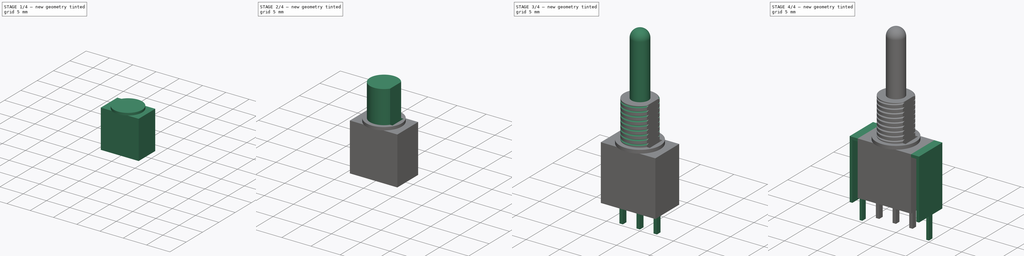
[diagram: build sequence overview — one tinted view per stage of 4, left to right]
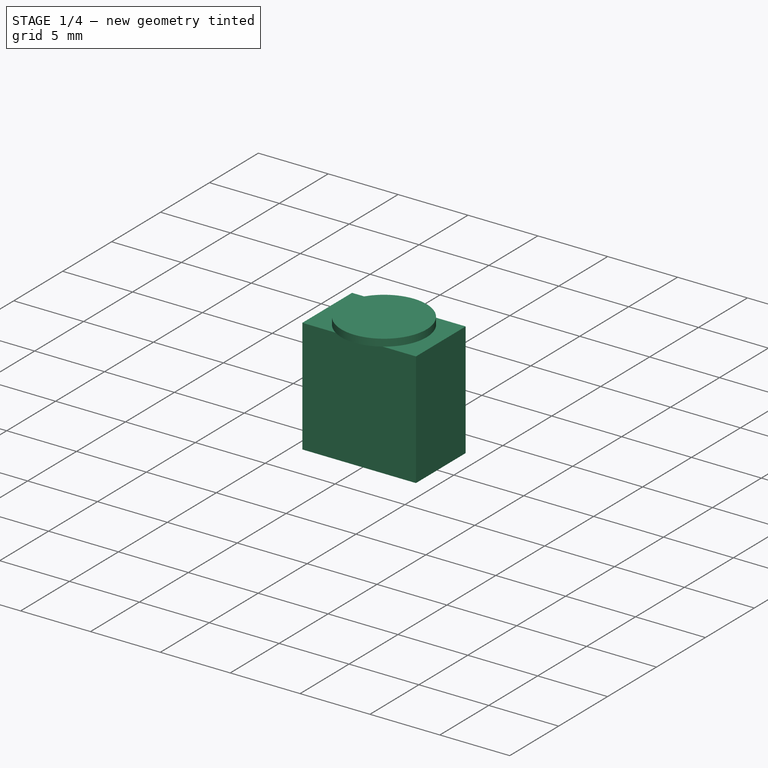
[diagram: stage 1 of 4 — iso view after this stage's code; geometry added in this stage tinted green]
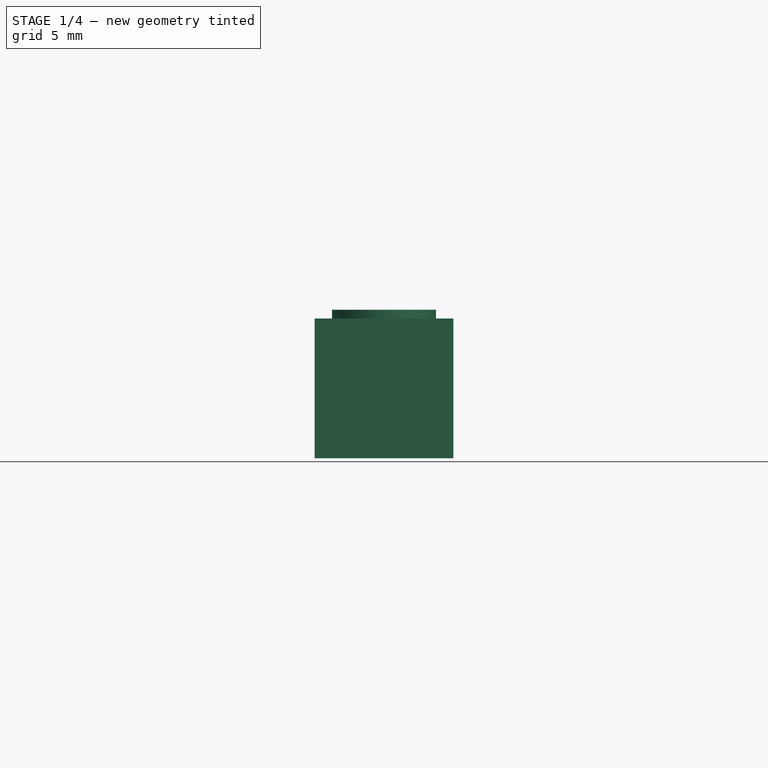
[diagram: stage 1 of 4 — front view after this stage's code; geometry added in this stage tinted green]
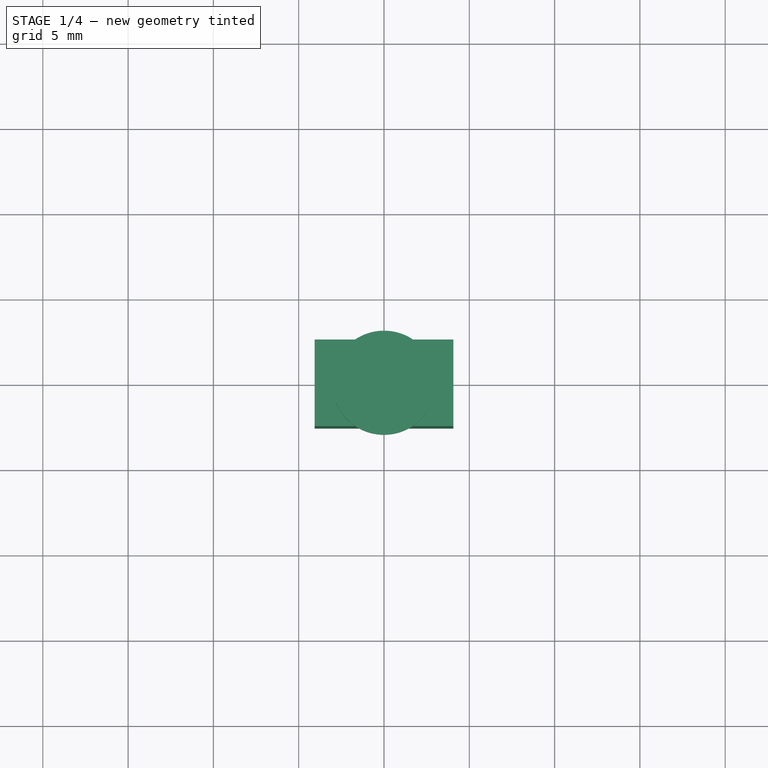
[diagram: stage 1 of 4 — top view after this stage's code; geometry added in this stage tinted green]
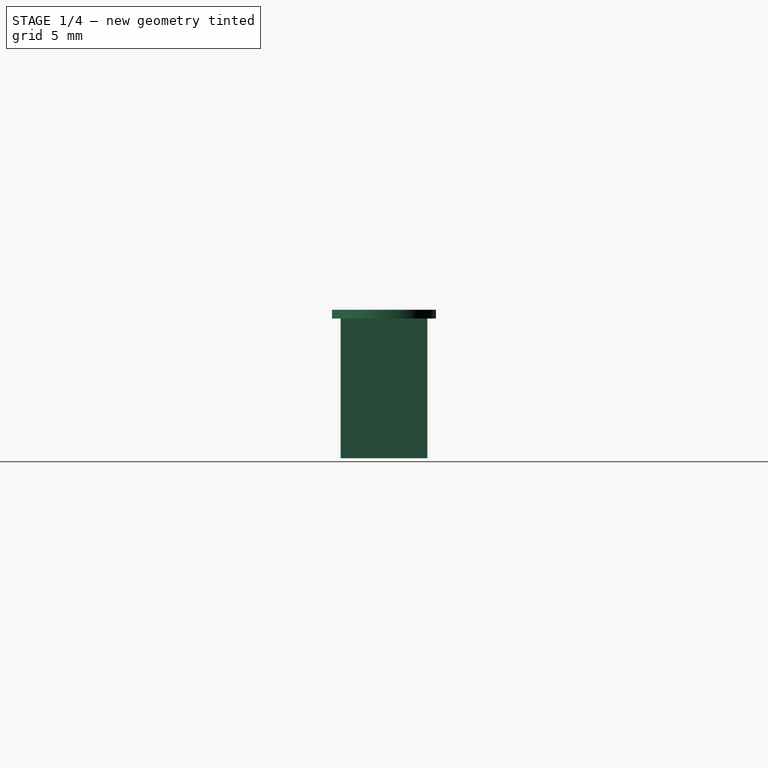
[diagram: stage 1 of 4 — right view after this stage's code; geometry added in this stage tinted green]
FCSTD DOCUMENT  (FreeCAD 0.19R24276 (Git))
Label: BNT11SEA5QE
License: All rights reserved
LicenseURL: http://en.wikipedia.org/wiki/All_rights_reserved
objects: Sketcher::SketchObject×6, PartDesign::Pad×3, PartDesign::AdditiveCylinder×2, PartDesign::AdditiveBox×1, PartDesign::Point×1, PartDesign::Pocket×1, PartDesign::Plane×1, PartDesign::SubtractiveHelix×1, PartDesign::Revolution×1, PartDesign::Body×1
note: 27 computed .brp shape members not serialized (recipe doc carries the construction recipe); baked Part::Feature solids carry a one-line shape summary decoded from their .brp

FEATURE [PartDesign::AdditiveBox] Box  label="Lower body"
  AttacherType = Attacher::AttachEngine3D
  AttachmentOffset = pos=(-4.065,-2.54,0) rot=(0,0,1;0rad)
  Height = 8.19
  Length = 8.13
  MapMode = 5
  Placement = pos=(-4.065,-2.54,0) rot=(0,0,1;0rad)
  Support = -> [XY_Plane]
  Width = 5.08
FEATURE [PartDesign::Point] DatumPoint  label="Lower body center"
  AttacherType = Attacher::AttachEnginePoint
  MapMode = 37
  Placement = pos=(0,0,8.19) rot=(0,0,1;0rad)
  Support = -> [Box]
FEATURE [PartDesign::AdditiveCylinder] Cylinder
  Angle = 360
  AttacherType = Attacher::AttachEngine3D
  BaseFeature = -> Box
  Height = 0.51
  MapMode = 1
  Placement = pos=(0,0,8.19) rot=(0,0,1;0rad)
  Radius = 3.05
  Support = -> [DatumPoint]
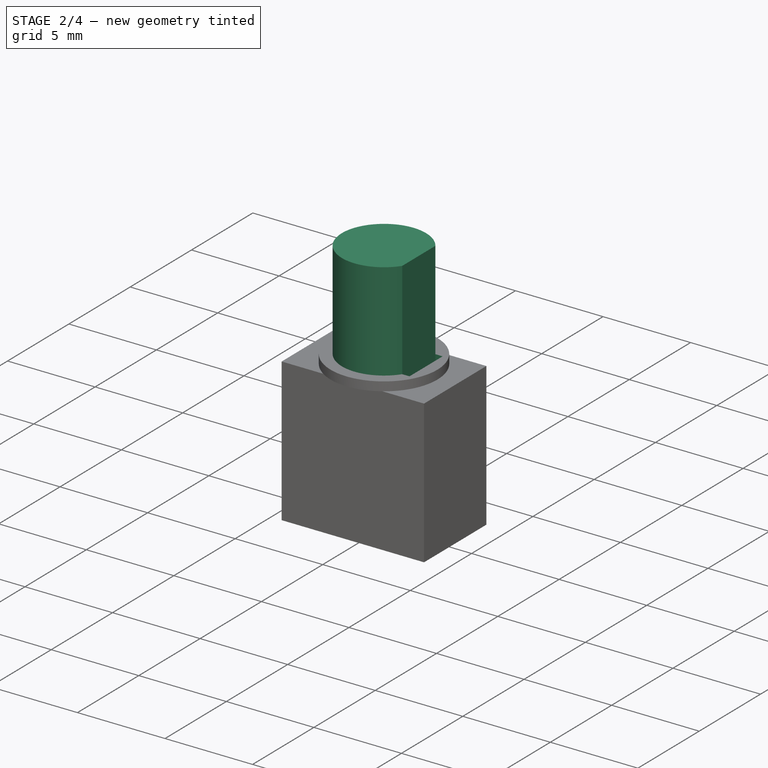
[diagram: stage 2 of 4 — iso view after this stage's code; geometry added in this stage tinted green]
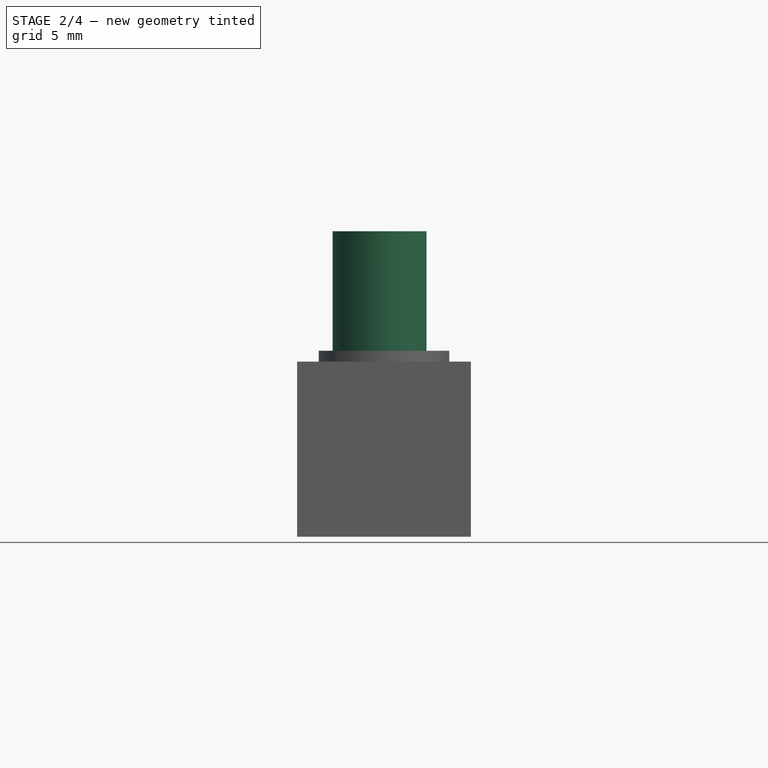
[diagram: stage 2 of 4 — front view after this stage's code; geometry added in this stage tinted green]
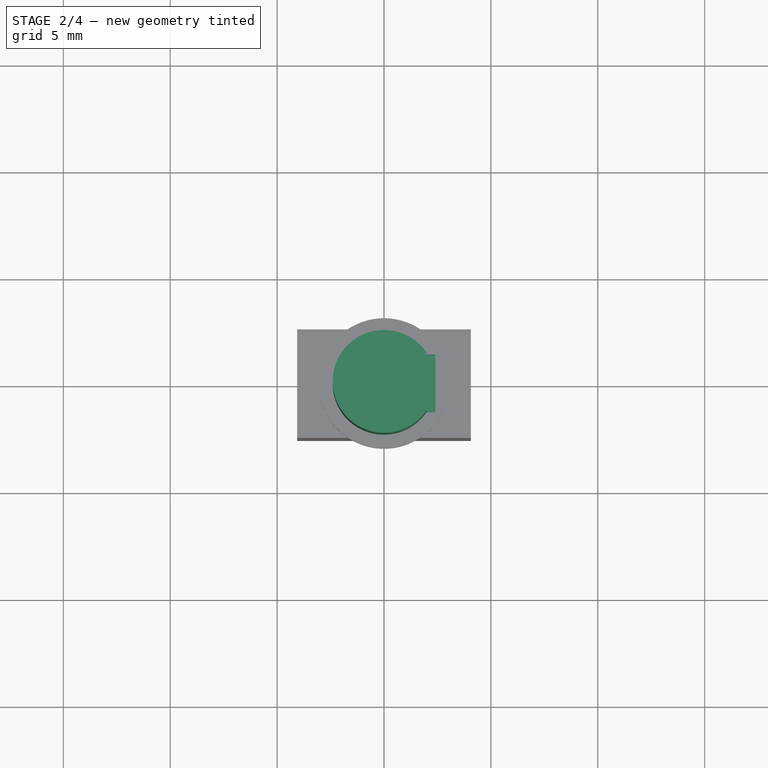
[diagram: stage 2 of 4 — top view after this stage's code; geometry added in this stage tinted green]
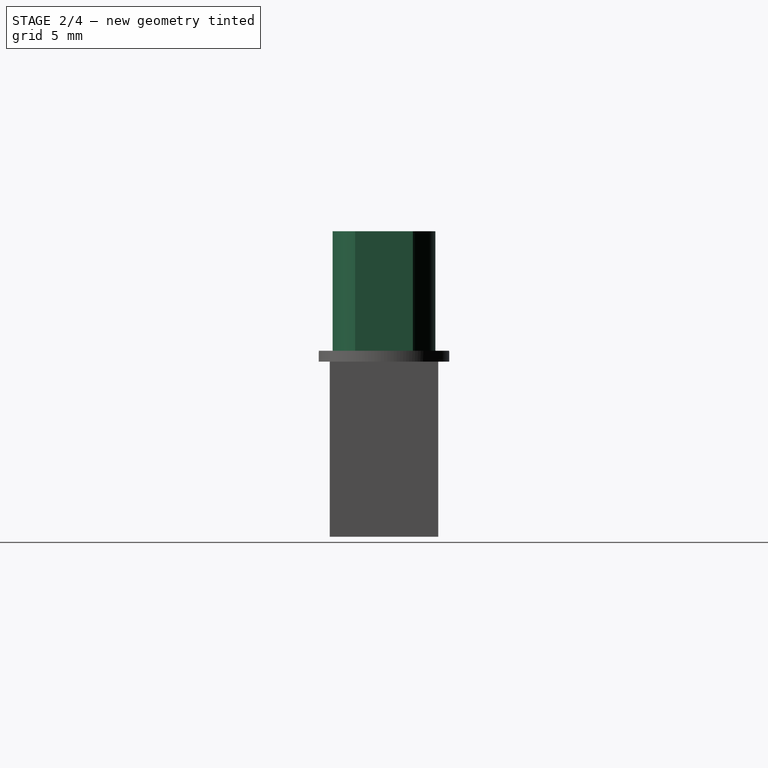
[diagram: stage 2 of 4 — right view after this stage's code; geometry added in this stage tinted green]
FEATURE [PartDesign::AdditiveCylinder] Cylinder001
  Angle = 360
  AttacherType = Attacher::AttachEngine3D
  BaseFeature = -> Cylinder
  Height = 5.59
  MapMode = 5
  Placement = pos=(0,0,8.7) rot=(0,0,1;0rad)
  Radius = 2.40284
  Support = -> [Cylinder]
  expr: Radius = 0.1892in / 2
FEATURE [Sketcher::SketchObject] Sketch
  ExternalGeometry = -> [Cylinder001]
  FullyConstrained = true
  MapMode = 5
  Placement = pos=(0,0,14.29) rot=(0,0,1;0rad)
  Support = -> [Cylinder001]
  sketch-geometry (5):
    g0: LineSegment StartX=1.98716 StartY=1.35086 StartZ=0 EndX=1.98716 EndY=-1.35086 EndZ=0
    g1: GeomPoint X=-2.40284 Y=0 Z=0
    g2: LineSegment StartX=1.98716 StartY=1.35086 StartZ=0 EndX=2.40284 EndY=1.35086 EndZ=0
    g3: LineSegment StartX=2.40284 StartY=1.35086 StartZ=0 EndX=2.40284 EndY=-1.35086 EndZ=0
    g4: LineSegment StartX=1.98716 StartY=-1.35086 StartZ=0 EndX=2.40284 EndY=-1.35086 EndZ=0
  constraints (14):
    c: PointOnObject(g0,g-3)
    c: PointOnObject(g0,g-3)
    c: Vertical(g0)
    c: PointOnObject(g1,g-3)
    c: PointOnObject(g1,g-1)
    c: DistanceX(g1,g0) = 4.39
    c: Coincident(g2,g0)
    c: Horizontal(g2)
    c: Coincident(g3,g2)
    c: Coincident(g4,g0)
    c: Coincident(g4,g3)
    c: Horizontal(g4)
    c: Tangent(g3,g-3)
    c: Equal(g2,g4)
FEATURE [PartDesign::Pocket] Pocket
  BaseFeature = -> Cylinder001
  Length = 0
  Length2 = 100
  Placement = pos=(0,0,8.7) rot=(0,0,1;0rad)
  Profile = -> Sketch
  Type = 3
  UpToFace = -> Cylinder001 [Face8]
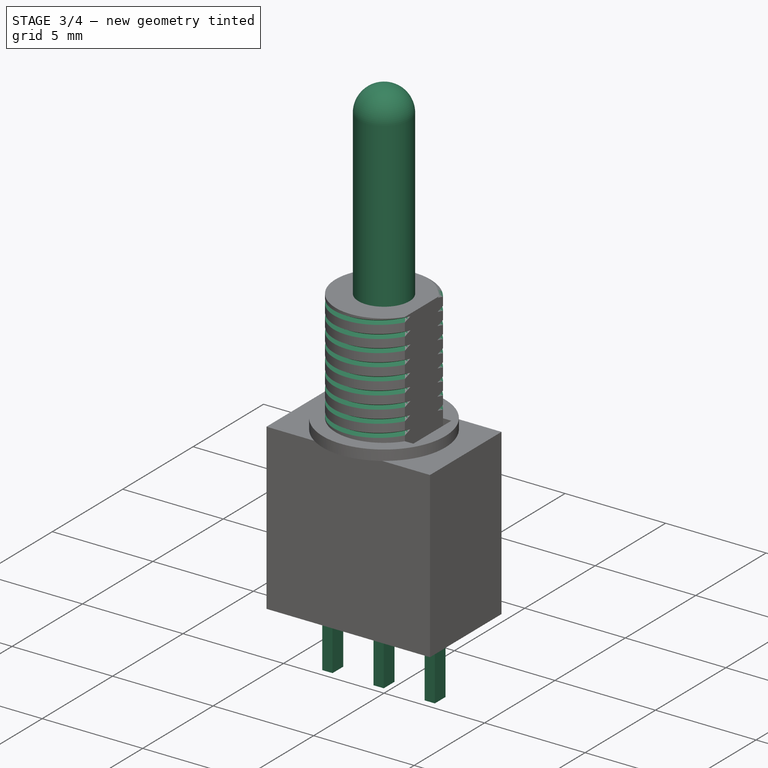
[diagram: stage 3 of 4 — iso view after this stage's code; geometry added in this stage tinted green]
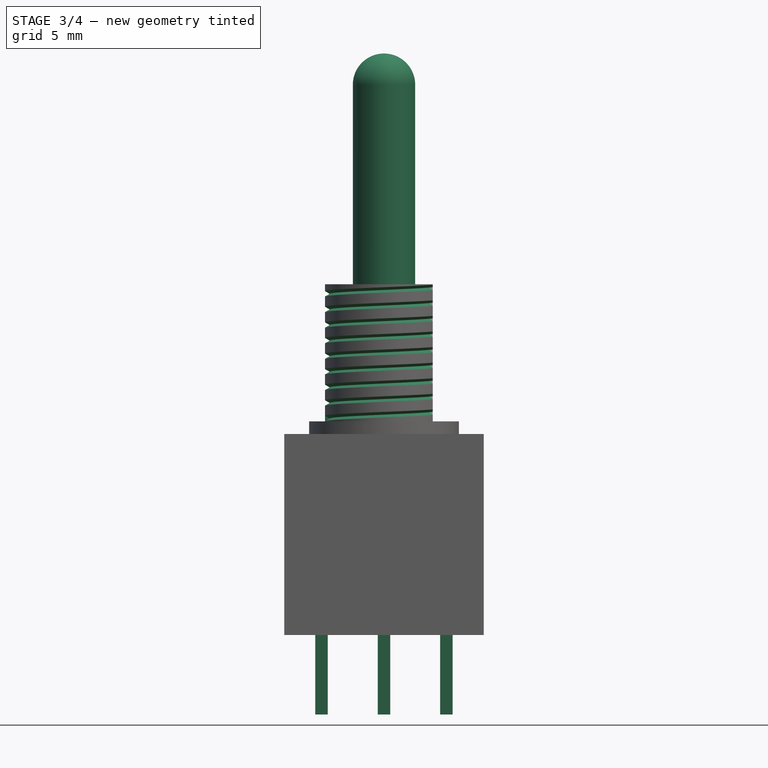
[diagram: stage 3 of 4 — front view after this stage's code; geometry added in this stage tinted green]
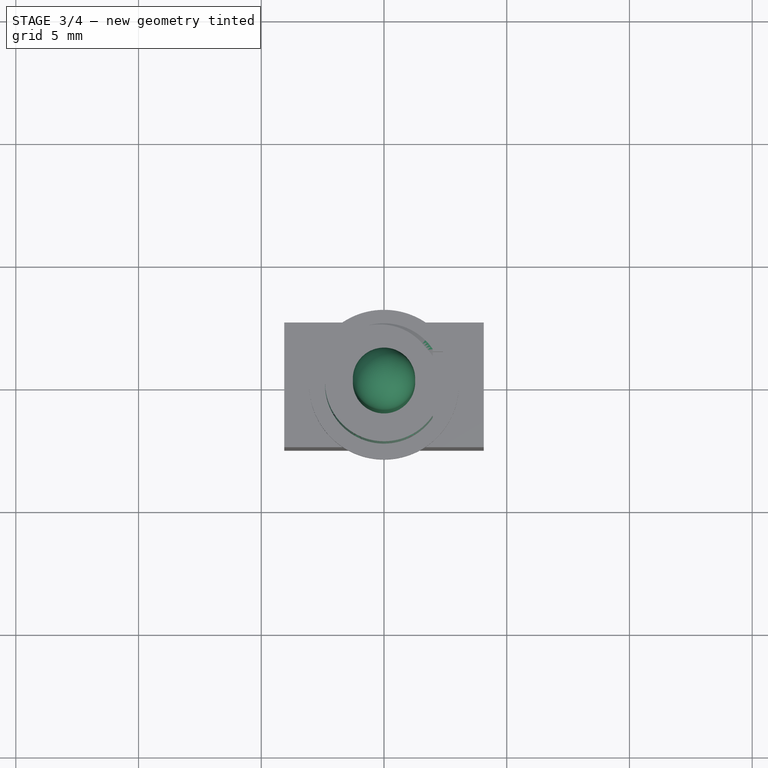
[diagram: stage 3 of 4 — top view after this stage's code; geometry added in this stage tinted green]
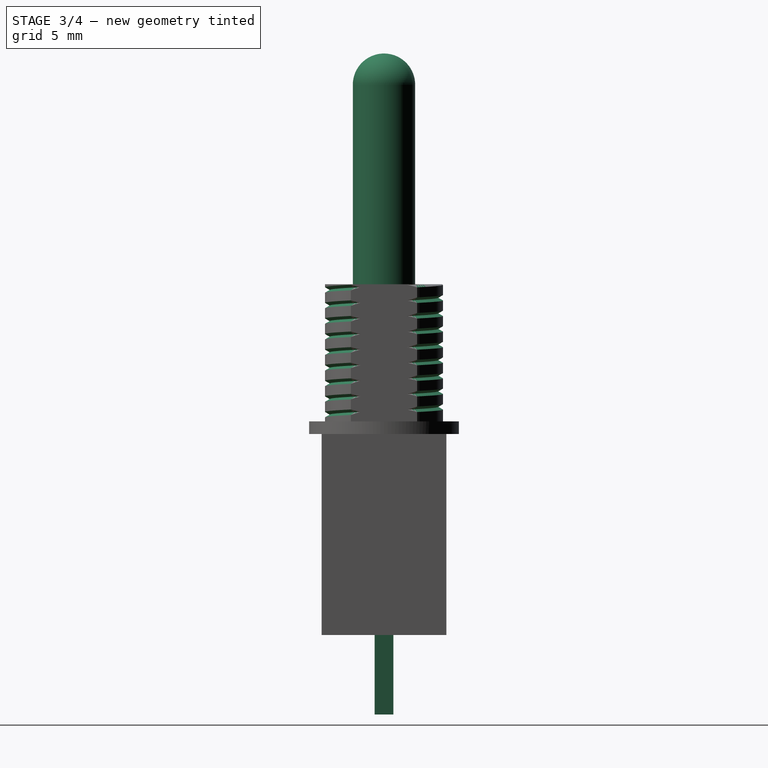
[diagram: stage 3 of 4 — right view after this stage's code; geometry added in this stage tinted green]
FEATURE [PartDesign::Plane] DatumPlane
  Length = 60
  MapMode = 45
  Placement = pos=(0,0,4.095) rot=(0.57735,0.57735,0.57735;4.18879rad)
  ResizeMode = 0
  Support = -> [Pocket]
  Width = 60
FEATURE [Sketcher::SketchObject] Sketch001
  ExternalGeometry = -> [Pocket]
  FullyConstrained = true
  MapMode = 5
  Placement = pos=(0,0,4.095) rot=(0.57735,0.57735,0.57735;4.18879rad)
  Support = -> [DatumPlane]
  expr: Constraints[8] = 0.1892in / 2mm + 0.01
  expr: Constraints[0] = (0.1892in - 0.1731in) / 2
  sketch-geometry (4):
    g0: LineSegment StartX=4.72305 StartY=-2.20837 StartZ=0 EndX=4.8411 EndY=-2.41284 EndZ=0
    g1: LineSegment StartX=4.72305 StartY=-2.20837 StartZ=0 EndX=4.605 EndY=-2.41284 EndZ=0
    g2: LineSegment StartX=4.8411 StartY=-2.41284 StartZ=0 EndX=4.605 EndY=-2.41284 EndZ=0
    g3: GeomPoint X=4.605 Y=0 Z=0
  constraints (11):
    c: DistanceY(g0,g0) = 0.20447
    c: Coincident(g1,g0)
    c: Horizontal(g2)
    c: Coincident(g2,g0)
    c: PointOnObject(g3,g-3)
    c: PointOnObject(g3,g-1)
    c: Coincident(g2,g1)
    c: Angle(g1,g0) = 1.0472
    c: DistanceY(g1,g3) = 2.41284
    c: PointOnObject(g1,g-3)
    c: Equal(g1,g0)
FEATURE [PartDesign::SubtractiveHelix] SubtractiveHelix
  Angle = 0
  Axis = (-3e-16,3e-16,1)
  Base = (0,0,0)
  BaseFeature = -> Pocket
  HasBeenEdited = true
  Height = 5.59
  LeftHanded = false
  Mode = 0
  Outside = false
  Pitch = 0.635
  Placement = pos=(0,0,8.7) rot=(0,0,1;0rad)
  Profile = -> Sketch001
  ReferenceAxis = -> Z_Axis
  Turns = 8.33
  expr: Pitch = 1in / 40
FEATURE [Sketcher::SketchObject] Sketch002
  ExternalGeometry = -> [SubtractiveHelix]
  FullyConstrained = true
  MapMode = 5
  Placement = pos=(0,0,4.095) rot=(0.57735,0.57735,0.57735;4.18879rad)
  Support = -> [DatumPlane]
  sketch-geometry (6):
    g0: LineSegment StartX=10.195 StartY=-1.27 StartZ=0 EndX=18.325 EndY=-1.27 EndZ=0
    g1: LineSegment StartX=18.325 StartY=-1.27 StartZ=0 EndX=18.325 EndY=0 EndZ=0
    g2: LineSegment StartX=18.325 StartY=0 StartZ=0 EndX=10.195 EndY=0 EndZ=0
    g3: LineSegment StartX=10.195 StartY=0 StartZ=0 EndX=10.195 EndY=-1.27 EndZ=0
    g4: ArcOfCircle CenterX=18.325 CenterY=0 CenterZ=0 NormalX=0 NormalY=0 NormalZ=1 AngleXU=0 Radius=1.27 StartAngle=4.71239 EndAngle=6.28319
    g5: LineSegment StartX=18.325 StartY=0 StartZ=0 EndX=19.595 EndY=-3e-16 EndZ=0
  constraints (17):
    c: Coincident(g0,g1)
    c: Coincident(g1,g2)
    c: Coincident(g2,g3)
    c: Coincident(g3,g0)
    c: Horizontal(g0)
    c: Horizontal(g2)
    c: Vertical(g1)
    c: Vertical(g3)
    c: PointOnObject(g0,g-3)
    c: PointOnObject(g1,g-1)
    c: DistanceY(g0,g1) = 1.27
    c: Coincident(g4,g2)
    c: Coincident(g4,g0)
    c: PointOnObject(g4,g-1)
    c: Coincident(g5,g2)
    c: Coincident(g5,g4)
    c: DistanceX(g2,g4) = 9.4
FEATURE [PartDesign::Revolution] Revolution
  Angle = 360
  Axis = (-3e-16,3e-16,1)
  Base = (0,0,0)
  BaseFeature = -> SubtractiveHelix
  Placement = pos=(0,0,8.7) rot=(0,0,1;0rad)
  Profile = -> Sketch002
  ReferenceAxis = -> Z_Axis
FEATURE [Sketcher::SketchObject] Sketch003
  FullyConstrained = false
  MapMode = 5
  Placement = pos=(0,0,0) rot=(1,0,0;3.14159rad)
  Support = -> [Revolution]
  sketch-geometry (23):
    g0: LineSegment StartX=-0.255 StartY=0.38 StartZ=0 EndX=0.255 EndY=0.38 EndZ=0
    g1: LineSegment StartX=0.255 StartY=0.38 StartZ=0 EndX=0.255 EndY=-0.38 EndZ=0
    g2: LineSegment StartX=0.255 StartY=-0.38 StartZ=0 EndX=-0.255 EndY=-0.38 EndZ=0
    g3: LineSegment StartX=-0.255 StartY=-0.38 StartZ=0 EndX=-0.255 EndY=0.38 EndZ=0
    g4: LineSegment StartX=-0.255 StartY=0.38 StartZ=0 EndX=0.255 EndY=-0.38 EndZ=0
    g5: LineSegment StartX=0.255 StartY=0.38 StartZ=0 EndX=-0.255 EndY=-0.38 EndZ=0
    g6: LineSegment StartX=2.285 StartY=0.38 StartZ=0 EndX=2.795 EndY=0.38 EndZ=0
    g7: LineSegment StartX=2.795 StartY=0.38 StartZ=0 EndX=2.795 EndY=-0.38 EndZ=0
    g8: LineSegment StartX=2.795 StartY=-0.38 StartZ=0 EndX=2.285 EndY=-0.38 EndZ=0
    g9: LineSegment StartX=2.285 StartY=-0.38 StartZ=0 EndX=2.285 EndY=0.38 EndZ=0
    g10: LineSegment StartX=2.285 StartY=0.38 StartZ=0 EndX=2.795 EndY=-0.38 EndZ=0
    g11: LineSegment StartX=2.795 StartY=0.38 StartZ=0 EndX=2.285 EndY=-0.38 EndZ=0
    g12: LineSegment StartX=-2.80285 StartY=0.38 StartZ=0 EndX=-2.29285 EndY=0.38 EndZ=0
    g13: LineSegment StartX=-2.29285 StartY=0.38 StartZ=0 EndX=-2.29285 EndY=-0.38 EndZ=0
    g14: LineSegment StartX=-2.29285 StartY=-0.38 StartZ=0 EndX=-2.80285 EndY=-0.38 EndZ=0
    g15: LineSegment StartX=-2.80285 StartY=-0.38 StartZ=0 EndX=-2.80285 EndY=0.38 EndZ=0
    g16: LineSegment StartX=-2.80285 StartY=0.38 StartZ=0 EndX=-2.29285 EndY=-0.38 EndZ=0
    g17: LineSegment StartX=-2.29285 StartY=0.38 StartZ=0 EndX=-2.80285 EndY=-0.38 EndZ=0
    g18: GeomPoint X=-2.54785 Y=0 Z=0
    g19: GeomPoint X=2.54 Y=0 Z=0
    g20: LineSegment StartX=-2.54785 StartY=0 StartZ=0 EndX=-0.00784984 EndY=-3.684e-13 EndZ=0
    g21: LineSegment StartX=-2.54785 StartY=0 StartZ=0 EndX=0 EndY=0 EndZ=0
    g22: LineSegment StartX=0 StartY=0 StartZ=0 EndX=2.54 EndY=0 EndZ=0
  constraints (57):
    c: Coincident(g0,g1)
    c: Coincident(g1,g2)
    c: Coincident(g2,g3)
    c: Coincident(g3,g0)
    c: Horizontal(g0)
    c: Horizontal(g2)
    c: Vertical(g1)
    c: Vertical(g3)
    c: Coincident(g4,g0)
    c: Coincident(g4,g1)
    c: Coincident(g5,g0)
    c: Coincident(g5,g2)
    c: PointOnObject(g-1,g4)
    c: PointOnObject(g-1,g5)
    c: DistanceX(g0,g0) = 0.51
    c: DistanceY(g1,g0) = 0.76
    c: Coincident(g6,g7)
    c: Coincident(g7,g8)
    c: Coincident(g8,g9)
    c: Coincident(g9,g6)
    c: Horizontal(g6)
    c: Horizontal(g8)
    c: Vertical(g7)
    c: Vertical(g9)
    c: Coincident(g10,g6)
    c: Coincident(g10,g7)
    c: Coincident(g11,g6)
    c: Coincident(g11,g8)
    c: DistanceX(g6,g6) = 0.51
    c: DistanceY(g7,g6) = 0.76
    c: Coincident(g12,g13)
    c: Coincident(g13,g14)
    c: Coincident(g14,g15)
    c: Coincident(g15,g12)
    c: Horizontal(g12)
    c: Horizontal(g14)
    c: Vertical(g13)
    c: Vertical(g15)
    c: Coincident(g16,g12)
    c: Coincident(g16,g13)
    c: Coincident(g17,g12)
    c: Coincident(g17,g14)
    c: DistanceX(g12,g12) = 0.51
    c: DistanceY(g13,g12) = 0.76
    c: PointOnObject(g18,g16)
    c: PointOnObject(g19,g10)
    c: PointOnObject(g19,g11)
    c: PointOnObject(g18,g17)
    c: PointOnObject(g19,g-1)
    c: PointOnObject(g18,g-1)
    c: Coincident(g20,g18)
    c: Coincident(g21,g18)
    c: Coincident(g21,g-1)
    c: Coincident(g22,g-1)
    c: Coincident(g22,g19)
    c: Equal(g22,g20)
    c: Distance(g20) = 2.54
FEATURE [PartDesign::Pad] Pad
  BaseFeature = -> Revolution
  Direction = (1,1,1)
  Length = 3.24
  Length2 = 100
  Placement = pos=(0,0,8.7) rot=(0,0,1;0rad)
  Profile = -> Sketch003
  Type = 0
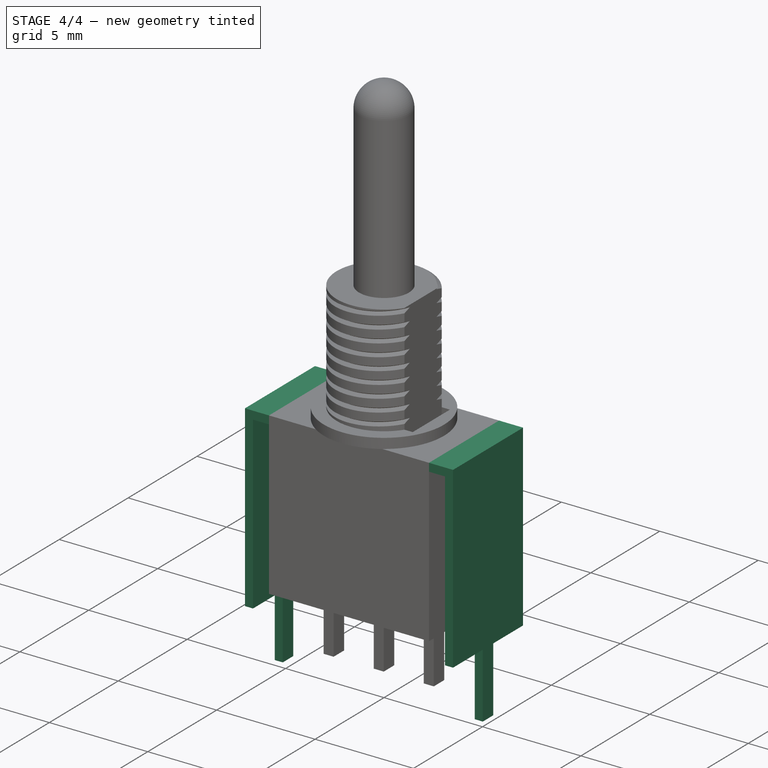
[diagram: stage 4 of 4 — iso view after this stage's code; geometry added in this stage tinted green]
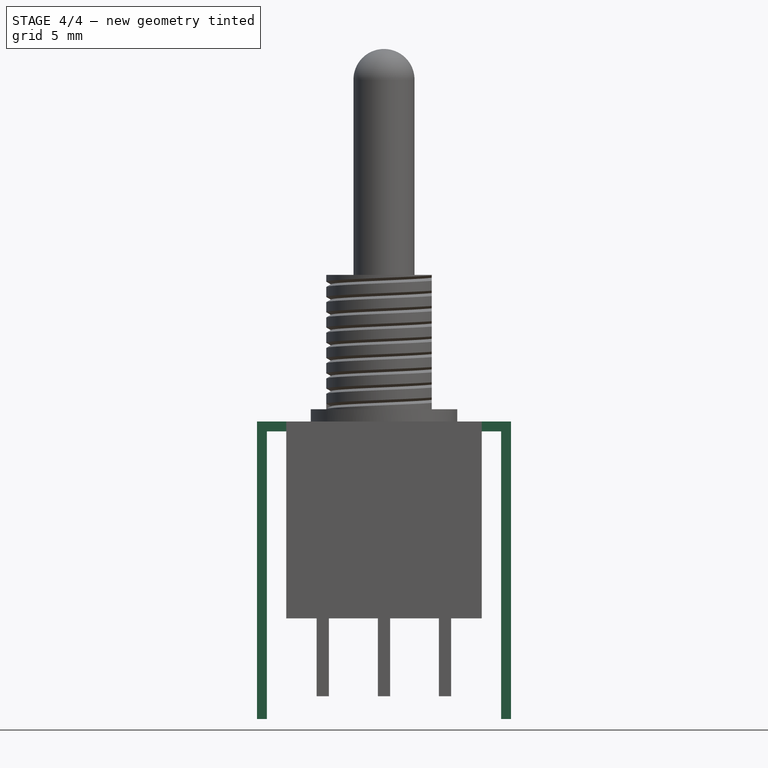
[diagram: stage 4 of 4 — front view after this stage's code; geometry added in this stage tinted green]
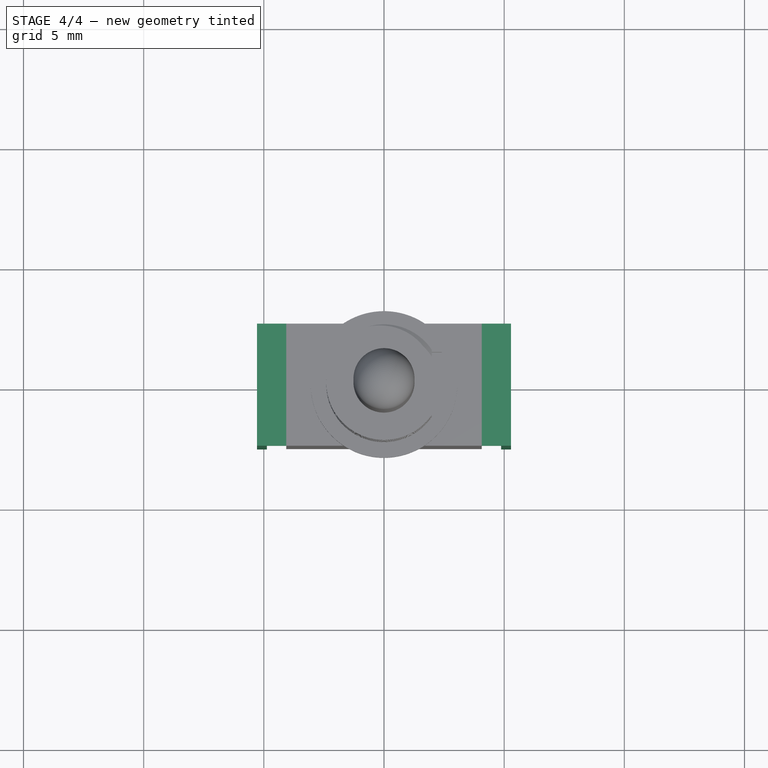
[diagram: stage 4 of 4 — top view after this stage's code; geometry added in this stage tinted green]
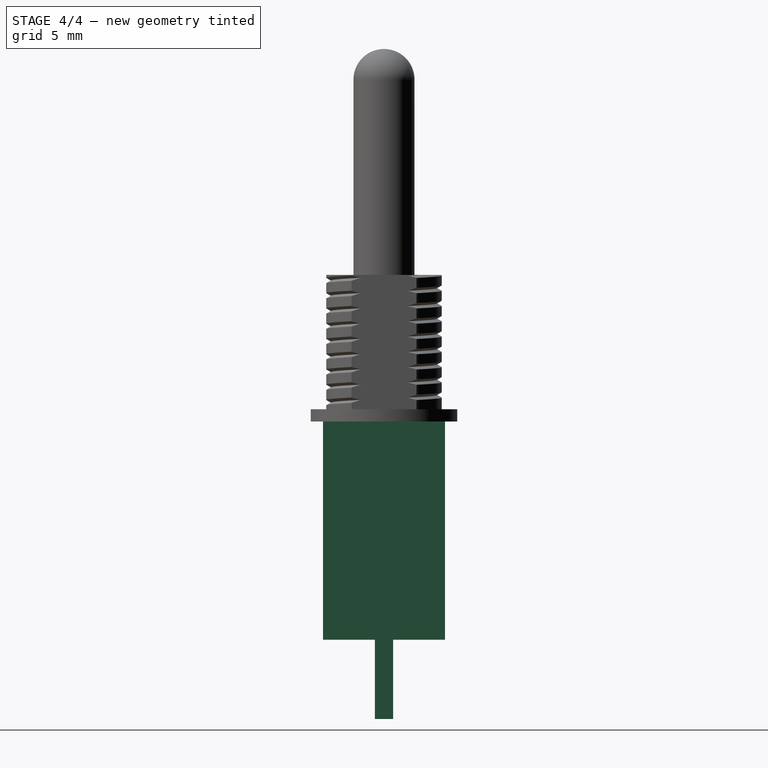
[diagram: stage 4 of 4 — right view after this stage's code; geometry added in this stage tinted green]
FEATURE [Sketcher::SketchObject] Sketch004
  ExternalGeometry = -> [Pad]
  FullyConstrained = true
  MapMode = 5
  Placement = pos=(0,2.54,8.7) rot=(0,0.707107,0.707107;3.14159rad)
  Support = -> [Pad]
  sketch-geometry (15):
    g0: LineSegment StartX=-5.285 StartY=-0.92 StartZ=0 EndX=-4.875 EndY=-0.92 EndZ=0
    g1: LineSegment StartX=-4.875 StartY=-0.92 StartZ=0 EndX=-4.875 EndY=-9.59 EndZ=0
    g2: LineSegment StartX=-4.875 StartY=-9.59 StartZ=0 EndX=-5.285 EndY=-9.59 EndZ=0
    g3: LineSegment StartX=-5.285 StartY=-9.59 StartZ=0 EndX=-5.285 EndY=-0.92 EndZ=0
    g4: LineSegment StartX=5.285 StartY=-0.92 StartZ=0 EndX=4.875 EndY=-0.92 EndZ=0
    g5: LineSegment StartX=4.875 StartY=-0.92 StartZ=0 EndX=4.875 EndY=-9.59 EndZ=0
    g6: LineSegment StartX=4.875 StartY=-9.59 StartZ=0 EndX=5.285 EndY=-9.59 EndZ=0
    g7: LineSegment StartX=5.285 StartY=-9.59 StartZ=0 EndX=5.285 EndY=-0.92 EndZ=0
    g8: LineSegment StartX=4.875 StartY=-0.92 StartZ=0 EndX=-4.875 EndY=-0.92 EndZ=0
    g9: LineSegment StartX=-5.285 StartY=-0.92 StartZ=0 EndX=-5.285 EndY=-0.51 EndZ=0
    g10: LineSegment StartX=-5.285 StartY=-0.51 StartZ=0 EndX=5.285 EndY=-0.51 EndZ=0
    g11: LineSegment StartX=5.285 StartY=-0.51 StartZ=0 EndX=5.285 EndY=-0.92 EndZ=0
    g12: GeomPoint X=5.08 Y=-9.59 Z=0
    g13: LineSegment StartX=4.875 StartY=-9.59 StartZ=0 EndX=5.08 EndY=-9.59 EndZ=0
    g14: LineSegment StartX=5.08 StartY=-9.59 StartZ=0 EndX=5.285 EndY=-9.59 EndZ=0
  constraints (38):
    c: Coincident(g1,g2)
    c: Coincident(g2,g3)
    c: Coincident(g5,g6)
    c: Coincident(g6,g7)
    c: Coincident(g7,g4)
    c: Horizontal(g6)
    c: Vertical(g7)
    c: Distance(g6) = 0.41
    c: Coincident(g8,g4)
    c: Coincident(g8,g1)
    c: Coincident(g1,g0)
    c: Horizontal(g0)
    c: Horizontal(g8)
    c: Symmetric(g2,g6,g-2)
    c: Coincident(g3,g0)
    c: Symmetric(g7,g3,g-2)
    c: Equal(g0,g4)
    c: Equal(g2,g6)
    c: Coincident(g9,g3)
    c: Vertical(g9)
    c: Coincident(g10,g9)
    c: Horizontal(g10)
    c: Coincident(g11,g10)
    c: Vertical(g11)
    c: Coincident(g11,g7)
    c: Equal(g11,g6)
    c: Horizontal(g2)
    c: Coincident(g13,g5)
    c: Coincident(g13,g12)
    c: Coincident(g14,g12)
    c: Coincident(g14,g6)
    c: Equal(g14,g13)
    c: PointOnObject(g12,g6)
    c: Vertical(g1)
    c: Coincident(g5,g8)
    c: DistanceY(g2,g9) = 9.08
    c: DistanceX(g-1,g12) = 5.08
    c: PointOnObject(g-3,g10)
FEATURE [PartDesign::Pad] Pad001
  BaseFeature = -> Pad
  Direction = (1,1,1)
  Length = 5.08
  Length2 = 100
  Placement = pos=(0,0,8.7) rot=(0,0,1;0rad)
  Profile = -> Sketch004
  Reversed = true
  Type = 0
FEATURE [Sketcher::SketchObject] Sketch005
  FullyConstrained = true
  MapMode = 5
  Placement = pos=(0,-2.1e-15,-0.89) rot=(1,0,0;3.14159rad)
  Support = -> [Pad001]
  sketch-geometry (14):
    g0: LineSegment StartX=-5.285 StartY=0.38 StartZ=0 EndX=-4.875 EndY=0.38 EndZ=0
    g1: LineSegment StartX=-4.875 StartY=0.38 StartZ=0 EndX=-4.875 EndY=-0.38 EndZ=0
    g2: LineSegment StartX=-4.875 StartY=-0.38 StartZ=0 EndX=-5.285 EndY=-0.38 EndZ=0
    g3: LineSegment StartX=-5.285 StartY=-0.38 StartZ=0 EndX=-5.285 EndY=0.38 EndZ=0
    g4: LineSegment StartX=-5.285 StartY=0.38 StartZ=0 EndX=-4.875 EndY=-0.38 EndZ=0
    g5: LineSegment StartX=-5.285 StartY=-0.38 StartZ=0 EndX=-4.875 EndY=0.38 EndZ=0
    g6: GeomPoint X=-5.08 Y=0 Z=0
    g7: LineSegment StartX=4.875 StartY=0.38 StartZ=0 EndX=5.285 EndY=0.38 EndZ=0
    g8: LineSegment StartX=5.285 StartY=0.38 StartZ=0 EndX=5.285 EndY=-0.38 EndZ=0
    g9: LineSegment StartX=5.285 StartY=-0.38 StartZ=0 EndX=4.875 EndY=-0.38 EndZ=0
    g10: LineSegment StartX=4.875 StartY=-0.38 StartZ=0 EndX=4.875 EndY=0.38 EndZ=0
    g11: LineSegment StartX=4.875 StartY=0.38 StartZ=0 EndX=5.285 EndY=-0.38 EndZ=0
    g12: LineSegment StartX=4.875 StartY=-0.38 StartZ=0 EndX=5.285 EndY=0.38 EndZ=0
    g13: GeomPoint X=5.08 Y=0 Z=0
  constraints (36):
    c: Coincident(g0,g1)
    c: Coincident(g1,g2)
    c: Coincident(g2,g3)
    c: Coincident(g3,g0)
    c: Horizontal(g0)
    c: Horizontal(g2)
    c: Vertical(g1)
    c: Vertical(g3)
    c: Coincident(g4,g0)
    c: Coincident(g4,g1)
    c: Coincident(g5,g2)
    c: Coincident(g5,g0)
    c: PointOnObject(g6,g5)
    c: PointOnObject(g6,g4)
    c: PointOnObject(g6,g-1)
    c: DistanceX(g6,g-1) = 5.08
    c: DistanceX(g2,g2) = 0.41
    c: DistanceY(g3,g3) = 0.76
    c: Coincident(g7,g8)
    c: Coincident(g8,g9)
    c: Coincident(g9,g10)
    c: Coincident(g10,g7)
    c: Horizontal(g7)
    c: Horizontal(g9)
    c: Vertical(g8)
    c: Vertical(g10)
    c: Coincident(g11,g7)
    c: Coincident(g11,g8)
    c: Coincident(g12,g9)
    c: Coincident(g12,g7)
    c: PointOnObject(g13,g12)
    c: PointOnObject(g13,g11)
    c: Equal(g2,g9) = 0.41
    c: Equal(g3,g10) = 0.76
    c: PointOnObject(g13,g-1)
    c: DistanceX(g-1,g13) = 5.08
FEATURE [PartDesign::Pad] Pad002
  BaseFeature = -> Pad001
  Direction = (1,1,1)
  Length = 3.3
  Length2 = 100
  Placement = pos=(0,0,8.7) rot=(0,0,1;0rad)
  Profile = -> Sketch005
  Type = 0
FEATURE [PartDesign::Body] Body
  Group = -> [Box,DatumPoint,Cylinder,Cylinder001,Sketch,Pocket,DatumPlane,Sketch001,SubtractiveHelix,Sketch002,Revolution,Sketch003,Pad,Sketch004,Pad001,Sketch005,Pad002]
  Origin = -> Origin
  Placement = pos=(0,0,0) rot=(0,0,1;1.5708rad)
  Tip = -> Pad002
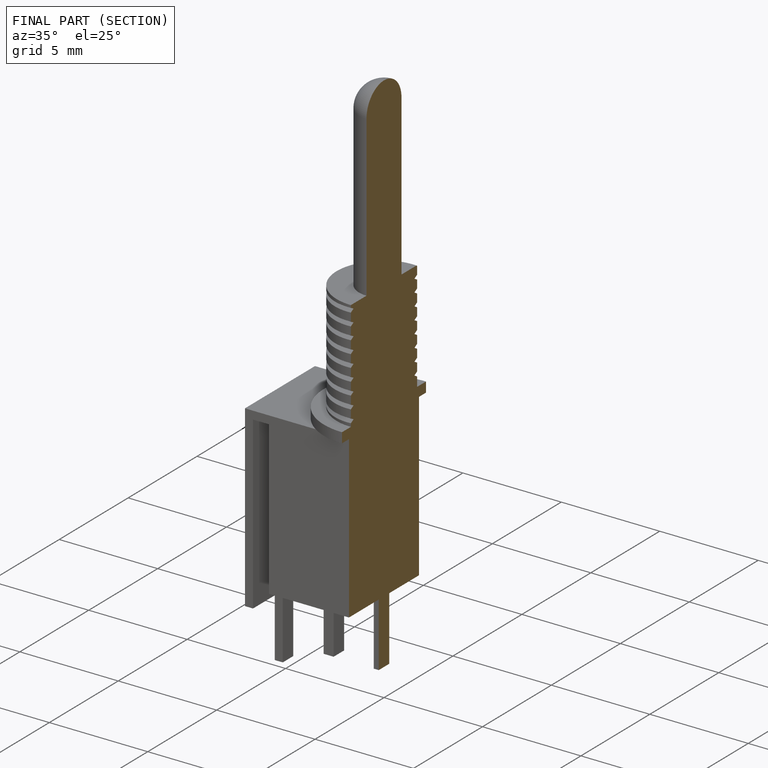
[diagram: finished part — half-section view (interior)]
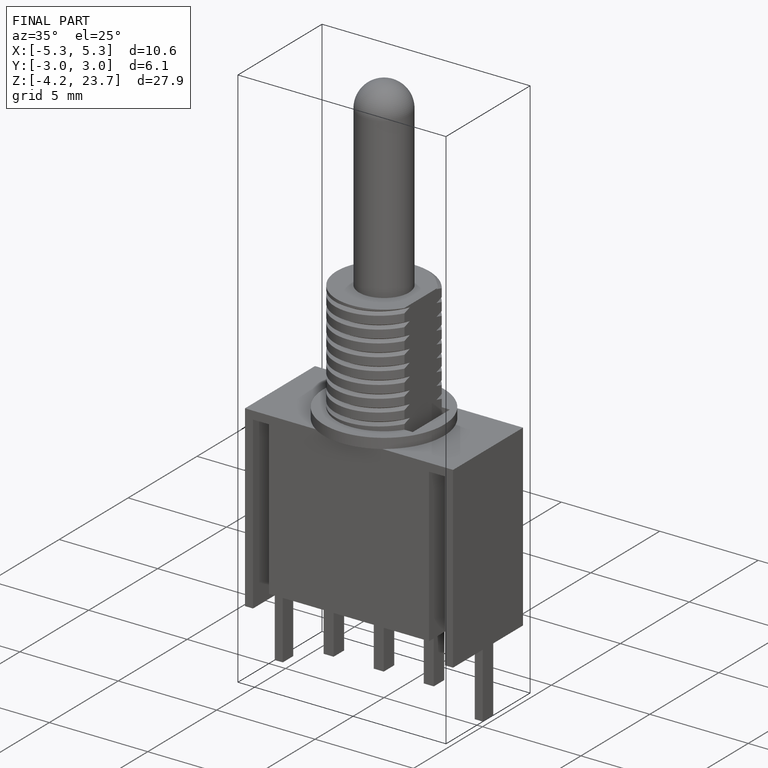
[diagram: finished part — iso view with bounding-box wireframe]
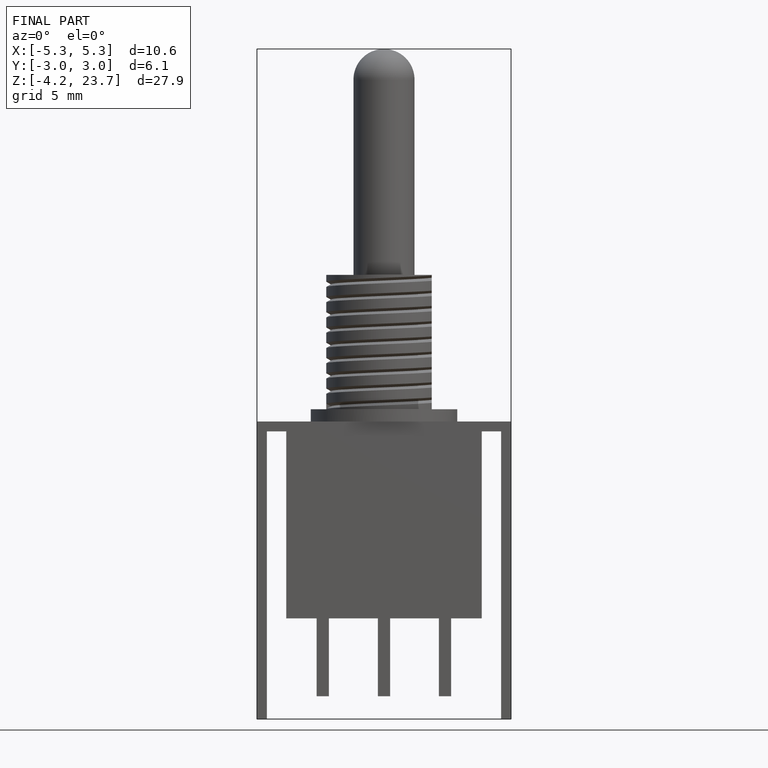
[diagram: finished part — front view with bounding-box wireframe]
